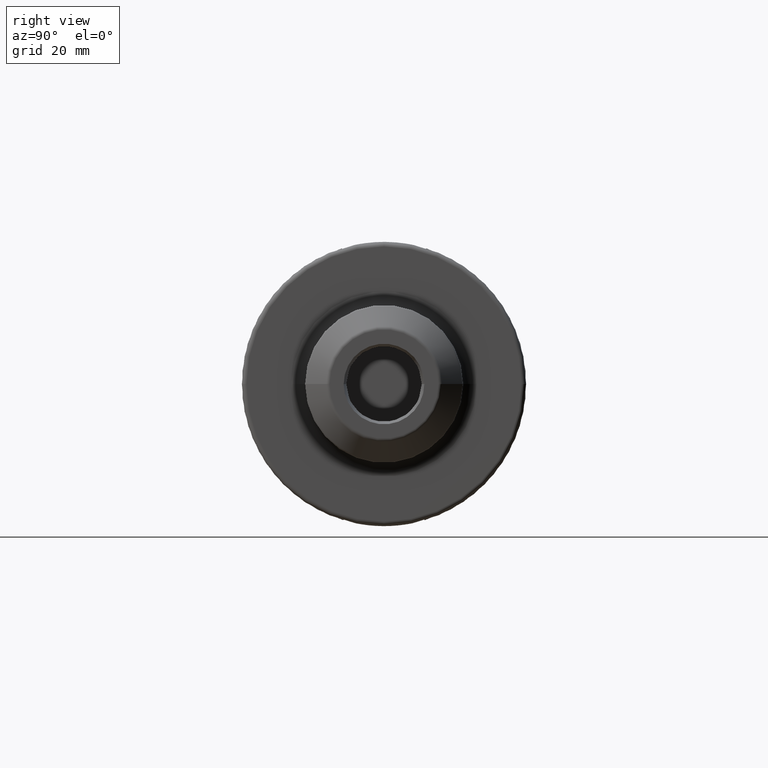
[diagram: clean part render]
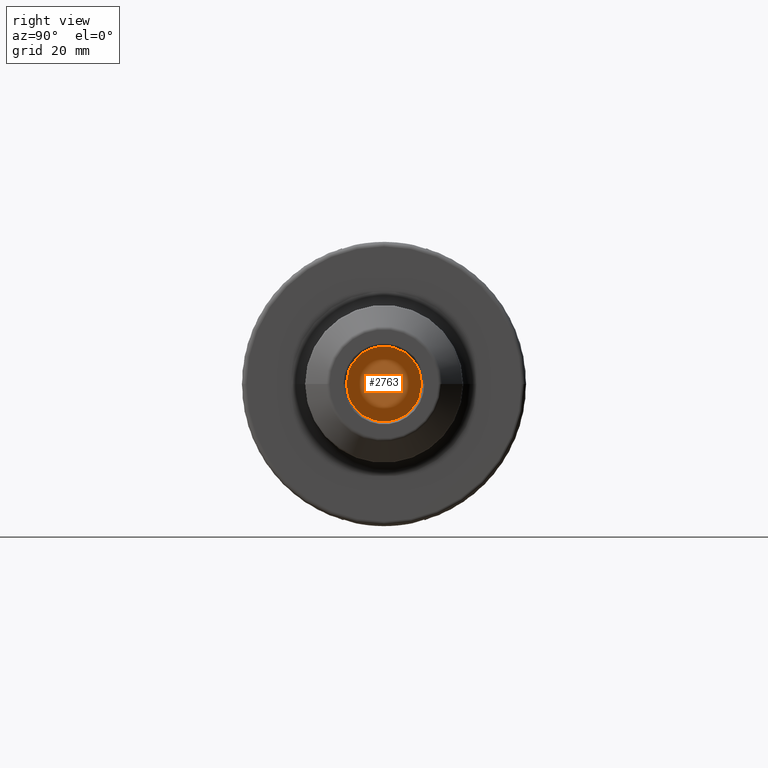
[diagram: same view with one face highlighted and labeled with its STEP entity id]
A machine part, right view. The second image highlights one B-rep face of the part: STEP entity #2763.
In plain terms, the highlighted planar face has unit normal (1, 0, 0).
Its self-contained STEP definition (entity closure, byte-faithful):
#959=CARTESIAN_POINT('',(2.8E0,0.E0,0.E0));
#960=DIRECTION('',(-1.E0,0.E0,0.E0));
#961=DIRECTION('',(0.E0,1.E0,0.E0));
#962=AXIS2_PLACEMENT_3D('',#959,#960,#961);
#964=CARTESIAN_POINT('',(2.8E0,0.E0,0.E0));
#965=DIRECTION('',(1.E0,0.E0,0.E0));
#966=DIRECTION('',(0.E0,1.E0,0.E0));
#967=AXIS2_PLACEMENT_3D('',#964,#965,#966);
#1432=CARTESIAN_POINT('',(2.8E0,8.36E0,0.E0));
#1434=VERTEX_POINT('',#1432);
#1436=CARTESIAN_POINT('',(2.8E0,-8.36E0,0.E0));
#1438=VERTEX_POINT('',#1436);
#2754=CARTESIAN_POINT('',(2.8E0,0.E0,0.E0));
#2755=DIRECTION('',(1.E0,0.E0,0.E0));
#2756=DIRECTION('',(0.E0,-1.E0,0.E0));
#2757=AXIS2_PLACEMENT_3D('',#2754,#2755,#2756);
#2758=PLANE('',#2757);
#2759=ORIENTED_EDGE('',*,*,#2736,.T.);
#2760=ORIENTED_EDGE('',*,*,#2747,.F.);
#2761=EDGE_LOOP('',(#2759,#2760));
#2762=FACE_OUTER_BOUND('',#2761,.F.);
#2763=ADVANCED_FACE('',(#2762),#2758,.T.);
#963=CIRCLE('',#962,8.36E0);
#968=CIRCLE('',#967,8.36E0);
#2736=EDGE_CURVE('',#1434,#1438,#963,.T.);
#2747=EDGE_CURVE('',#1434,#1438,#968,.T.);